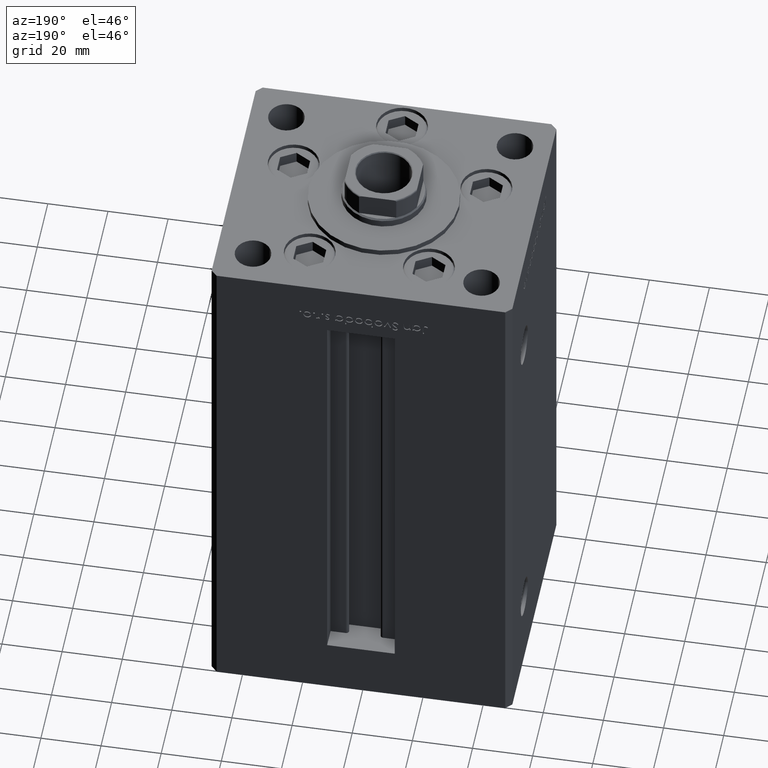
[diagram: clean part render]
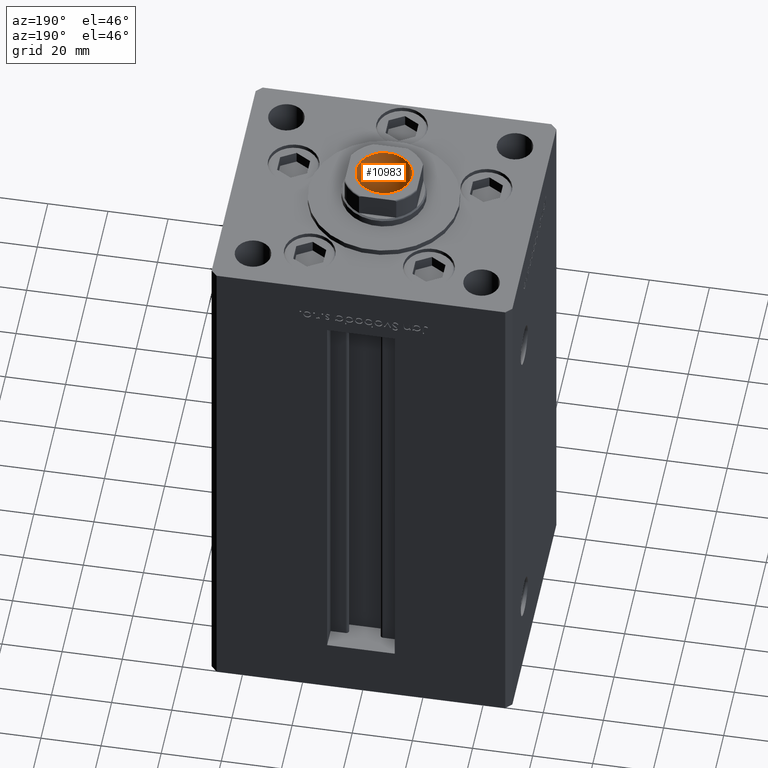
[diagram: same view with one face highlighted and labeled with its STEP entity id]
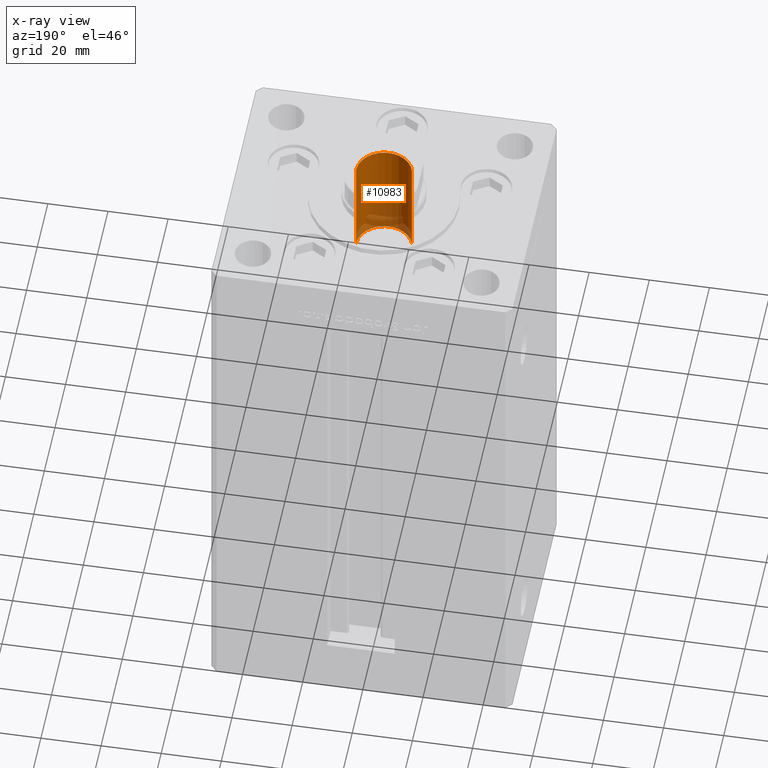
[diagram: x-ray of the same camera — body ghosted, the highlighted face saturated]
A machine part, auxiliary view. The second image highlights one B-rep face of the part: STEP entity #10983.
The next image is the same camera in x-ray: the body ghosted, the highlighted face saturated — about 30% of this face is hidden behind the body in this view.
In plain terms, the highlighted cylindrical surface (edge-blend (fillet) strip) has radius 9.25 mm, axis along (0, 0, 1).
Its self-contained STEP definition (entity closure, byte-faithful):
#1476 = DIRECTION ( 'NONE',  ( 1.000000000000000000, 0.000000000000000000, 0.000000000000000000 ) ) ;
#7217 = CARTESIAN_POINT ( 'NONE',  ( -9.249999999999996447, 1.132798289211301304E-15, 165.2500000000000000 ) ) ;
#8641 = LINE ( 'NONE', #36866, #45107 ) ;
#9574 = CARTESIAN_POINT ( 'NONE',  ( 9.249999999999994671, 0.000000000000000000, 130.2500000000000000 ) ) ;
#9918 = EDGE_CURVE ( 'NONE', #49569, #11982, #8641, .T. ) ;
#10905 = DIRECTION ( 'NONE',  ( -0.000000000000000000, -0.000000000000000000, 1.000000000000000000 ) ) ;
#10936 = DIRECTION ( 'NONE',  ( -0.000000000000000000, -0.000000000000000000, 1.000000000000000000 ) ) ;
#10983 = ADVANCED_FACE ( 'NONE', ( #50463 ), #38597, .F. ) ;
#11982 = VERTEX_POINT ( 'NONE', #30242 ) ;
#12402 = VERTEX_POINT ( 'NONE', #39404 ) ;
#13855 = EDGE_CURVE ( 'NONE', #19928, #11982, #33427, .T. ) ;
#14368 = ORIENTED_EDGE ( 'NONE', *, *, #33583, .T. ) ;
#14618 = CARTESIAN_POINT ( 'NONE',  ( 0.000000000000000000, 0.000000000000000000, 130.2500000000000000 ) ) ;
#16521 = CARTESIAN_POINT ( 'NONE',  ( -9.249999999999996447, 1.132798289211301304E-15, 164.9499999999999886 ) ) ;
#17662 = CIRCLE ( 'NONE', #51367, 9.249999999999994671 ) ;
#19928 = VERTEX_POINT ( 'NONE', #16521 ) ;
#21520 = DIRECTION ( 'NONE',  ( 0.000000000000000000, 0.000000000000000000, 1.000000000000000000 ) ) ;
#21637 = AXIS2_PLACEMENT_3D ( 'NONE', #40785, #21520, #1476 ) ;
#22317 = EDGE_LOOP ( 'NONE', ( #45772, #14368, #45631, #27301 ) ) ;
#25947 = DIRECTION ( 'NONE',  ( -0.000000000000000000, -0.000000000000000000, 1.000000000000000000 ) ) ;
#27301 = ORIENTED_EDGE ( 'NONE', *, *, #9918, .F. ) ;
#27454 = AXIS2_PLACEMENT_3D ( 'NONE', #38331, #25947, #29647 ) ;
#29647 = DIRECTION ( 'NONE',  ( 1.000000000000000000, 0.000000000000000000, 0.000000000000000000 ) ) ;
#30242 = CARTESIAN_POINT ( 'NONE',  ( 9.249999999999996447, 0.000000000000000000, 164.9499999999999886 ) ) ;
#30720 = DIRECTION ( 'NONE',  ( 1.000000000000000000, 0.000000000000000000, 0.000000000000000000 ) ) ;
#33427 = CIRCLE ( 'NONE', #21637, 9.249999999999996447 ) ;
#33583 = EDGE_CURVE ( 'NONE', #12402, #19928, #34656, .T. ) ;
#34656 = LINE ( 'NONE', #7217, #50986 ) ;
#36866 = CARTESIAN_POINT ( 'NONE',  ( 9.249999999999996447, 0.000000000000000000, 165.2500000000000000 ) ) ;
#38331 = CARTESIAN_POINT ( 'NONE',  ( 0.000000000000000000, 0.000000000000000000, 165.2500000000000000 ) ) ;
#38597 = CYLINDRICAL_SURFACE ( 'NONE', #27454, 9.249999999999996447 ) ;
#39404 = CARTESIAN_POINT ( 'NONE',  ( -9.249999999999994671, 1.132798289211300909E-15, 130.2500000000000000 ) ) ;
#40785 = CARTESIAN_POINT ( 'NONE',  ( 0.000000000000000000, 0.000000000000000000, 164.9499999999999886 ) ) ;
#45107 = VECTOR ( 'NONE', #49250, 1000.000000000000000 ) ;
#45631 = ORIENTED_EDGE ( 'NONE', *, *, #13855, .T. ) ;
#45772 = ORIENTED_EDGE ( 'NONE', *, *, #51682, .F. ) ;
#49250 = DIRECTION ( 'NONE',  ( -0.000000000000000000, -0.000000000000000000, 1.000000000000000000 ) ) ;
#49569 = VERTEX_POINT ( 'NONE', #9574 ) ;
#50463 = FACE_OUTER_BOUND ( 'NONE', #22317, .T. ) ;
#50986 = VECTOR ( 'NONE', #10905, 1000.000000000000000 ) ;
#51367 = AXIS2_PLACEMENT_3D ( 'NONE', #14618, #10936, #30720 ) ;
#51682 = EDGE_CURVE ( 'NONE', #12402, #49569, #17662, .T. ) ;